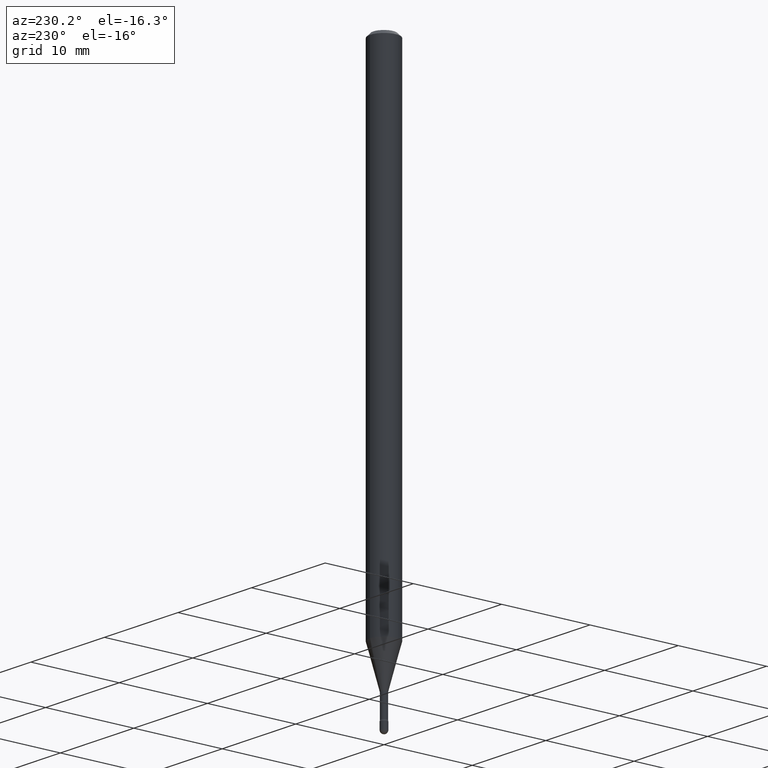
[diagram: clean part render]
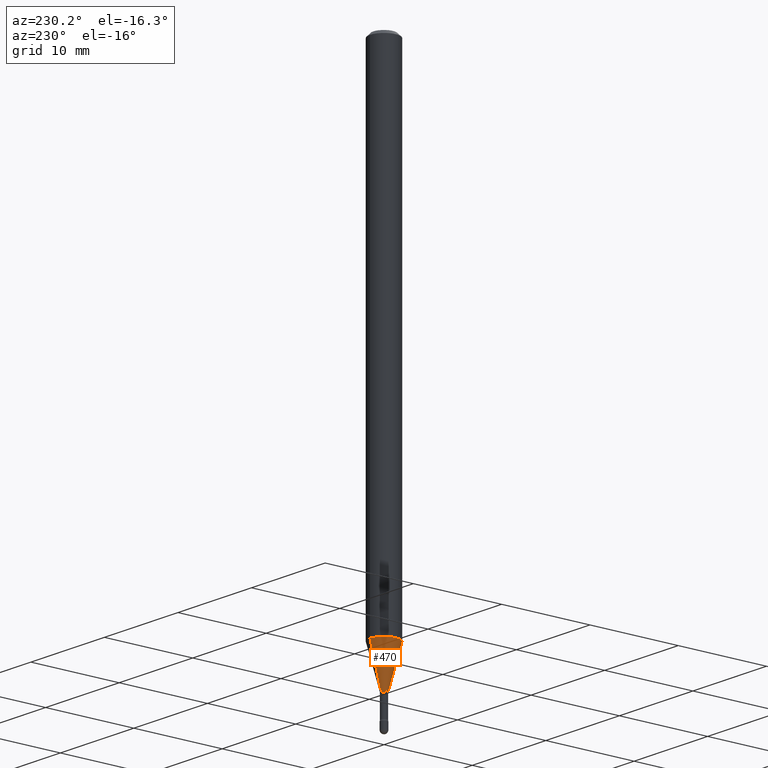
[diagram: same view with one face highlighted and labeled with its STEP entity id]
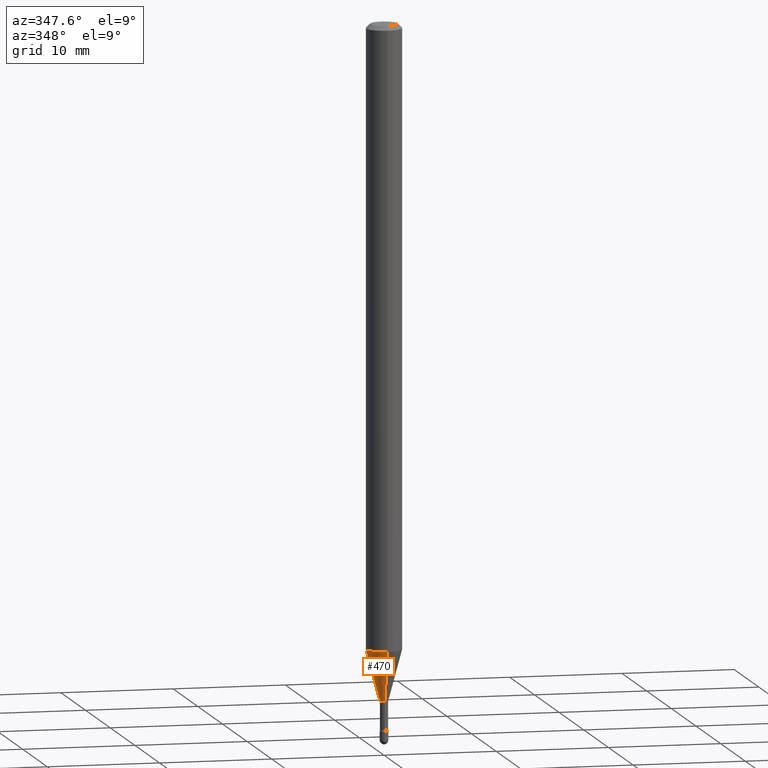
[diagram: same view with one face highlighted and labeled with its STEP entity id]
A machine part, auxiliary view. The second image highlights one B-rep face of the part: STEP entity #470.
A second angle (auxiliary view) of the same face is appended — the face is thin or edge-on in the first view.
In plain terms, the highlighted conical surface has half-angle 15 deg.
Its self-contained STEP definition (entity closure, byte-faithful):
#3 = DIRECTION ( 'NONE',  ( -6.982962677686265922E-15, -1.000000000000000000, 4.370956789862821150E-15 ) ) ;
#11 = CARTESIAN_POINT ( 'NONE',  ( 5.742075338623130299E-29, -8.198481010283205471E-15, -2.348092501787273356 ) ) ;
#16 = LINE ( 'NONE', #100, #439 ) ;
#19 = CARTESIAN_POINT ( 'NONE',  ( 2.739537045417235021E-16, 0.01461111260565578149, -2.348092501787273356 ) ) ;
#24 = LINE ( 'NONE', #514, #265 ) ;
#39 = EDGE_CURVE ( 'NONE', #344, #41, #343, .T. ) ;
#41 = VERTEX_POINT ( 'NONE', #558 ) ;
#42 = ORIENTED_EDGE ( 'NONE', *, *, #144, .T. ) ;
#46 = VERTEX_POINT ( 'NONE', #120 ) ;
#53 = CARTESIAN_POINT ( 'NONE',  ( 5.742075338623130299E-29, -8.198481010283205471E-15, -2.348092501787273356 ) ) ;
#100 = CARTESIAN_POINT ( 'NONE',  ( 1.038181992333310906E-16, 0.01461111260565578149, -2.348092501787273356 ) ) ;
#120 = CARTESIAN_POINT ( 'NONE',  ( -4.364351673553385199E-16, -0.06250000000000757727, -2.169368740913666826 ) ) ;
#144 = EDGE_CURVE ( 'NONE', #41, #46, #24, .T. ) ;
#146 = DIRECTION ( 'NONE',  ( 1.839019923739599526E-15, 0.2588190451025248473, 0.9659258262890673130 ) ) ;
#177 = VERTEX_POINT ( 'NONE', #369 ) ;
#185 = EDGE_LOOP ( 'NONE', ( #305, #487, #42, #520 ) ) ;
#215 = EDGE_CURVE ( 'NONE', #177, #46, #377, .T. ) ;
#228 = DIRECTION ( 'NONE',  ( -2.445421266092581423E-29, 3.491549418961498749E-15, 1.000000000000000000 ) ) ;
#233 = CONICAL_SURFACE ( 'NONE', #555, 0.01461111260566397979, 0.2617993877991501295 ) ;
#265 = VECTOR ( 'NONE', #507, 39.37007874015749564 ) ;
#305 = ORIENTED_EDGE ( 'NONE', *, *, #405, .F. ) ;
#343 = CIRCLE ( 'NONE', #554, 0.01461111260566397979 ) ;
#344 = VERTEX_POINT ( 'NONE', #19 ) ;
#359 = AXIS2_PLACEMENT_3D ( 'NONE', #552, #481, #3 ) ;
#361 = DIRECTION ( 'NONE',  ( -2.445421266092581423E-29, 3.491549418961498749E-15, 1.000000000000000000 ) ) ;
#369 = CARTESIAN_POINT ( 'NONE',  ( 4.440892098501154699E-16, 0.06249999999999240885, -2.169368740913667271 ) ) ;
#377 = CIRCLE ( 'NONE', #359, 0.06250000000000000000 ) ;
#396 = FACE_OUTER_BOUND ( 'NONE', #185, .T. ) ;
#397 = DIRECTION ( 'NONE',  ( -6.982962677686265133E-15, -1.000000000000000000, 0.000000000000000000 ) ) ;
#405 = EDGE_CURVE ( 'NONE', #344, #177, #16, .T. ) ;
#439 = VECTOR ( 'NONE', #146, 39.37007874015747433 ) ;
#470 = ADVANCED_FACE ( 'NONE', ( #396 ), #233, .T. ) ;
#481 = DIRECTION ( 'NONE',  ( -2.445421266092581423E-29, 3.491549418961498749E-15, 1.000000000000000000 ) ) ;
#487 = ORIENTED_EDGE ( 'NONE', *, *, #39, .T. ) ;
#507 = DIRECTION ( 'NONE',  ( -1.807323732225328562E-15, -0.2588190451025179639, 0.9659258262890689783 ) ) ;
#514 = CARTESIAN_POINT ( 'NONE',  ( -1.020288540047654768E-16, -0.01461111260567217636, -2.348092501787273356 ) ) ;
#520 = ORIENTED_EDGE ( 'NONE', *, *, #215, .F. ) ;
#537 = DIRECTION ( 'NONE',  ( -6.982962677686265133E-15, -1.000000000000000000, 0.000000000000000000 ) ) ;
#552 = CARTESIAN_POINT ( 'NONE',  ( 5.305020453026768105E-29, -7.574458166850352886E-15, -2.169368740913666826 ) ) ;
#554 = AXIS2_PLACEMENT_3D ( 'NONE', #53, #228, #397 ) ;
#555 = AXIS2_PLACEMENT_3D ( 'NONE', #11, #361, #537 ) ;
#558 = CARTESIAN_POINT ( 'NONE',  ( -1.020288540047654768E-16, -0.01461111260567217636, -2.348092501787273356 ) ) ;